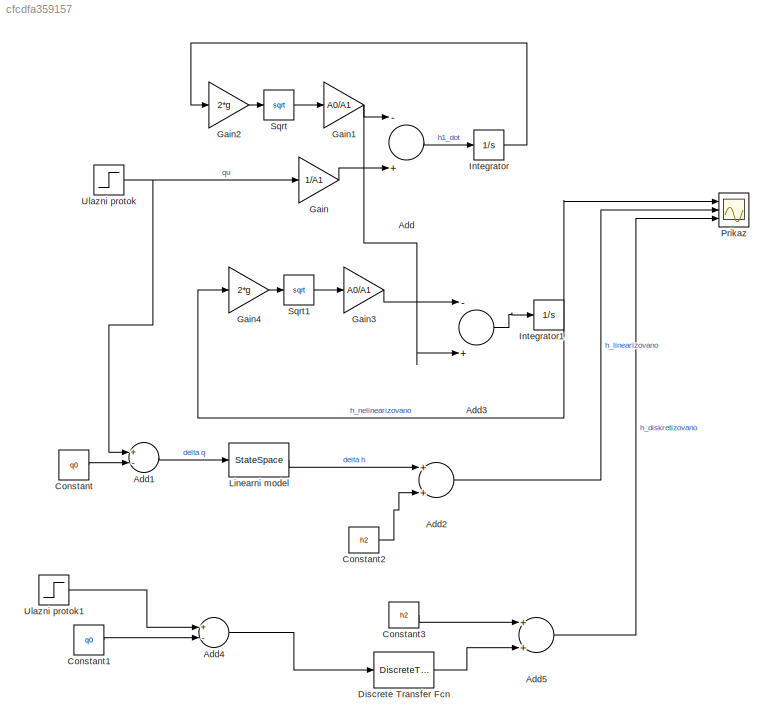
MODEL slx_cfcdfa359157
KIND model
CONFIG AbsTol = auto
CONFIG EnableMultiTasking = off
CONFIG FixedStep = auto
CONFIG MaxStep = auto
CONFIG MinStep = auto
CONFIG RelTol = 1e-3
CONFIG SampleTimeConstraint = Unconstrained
CONFIG Solver = VariableStepAuto
CONFIG SolverName = VariableStepAuto
CONFIG StartTime = 0.0
CONFIG StopTime = 6500
BLOCK [Sum] Add
  InputSameDT = off
  Inputs = -+
  OutDataTypeStr = Inherit: Inherit via internal rule
  Ports = [2, 1]
  SaturateOnIntegerOverflow = off
BLOCK [Sum] Add1
  InputSameDT = off
  Inputs = +-
  OutDataTypeStr = Inherit: Inherit via internal rule
  Ports = [2, 1]
  SaturateOnIntegerOverflow = off
BLOCK [Sum] Add2
  InputSameDT = off
  OutDataTypeStr = Inherit: Inherit via internal rule
  Ports = [2, 1]
  SaturateOnIntegerOverflow = off
BLOCK [Sum] Add3
  InputSameDT = off
  Inputs = -+
  OutDataTypeStr = Inherit: Inherit via internal rule
  Ports = [2, 1]
  SaturateOnIntegerOverflow = off
BLOCK [Sum] Add4
  InputSameDT = off
  Inputs = +-
  OutDataTypeStr = Inherit: Inherit via internal rule
  Ports = [2, 1]
  SaturateOnIntegerOverflow = off
BLOCK [Sum] Add5
  InputSameDT = off
  OutDataTypeStr = Inherit: Inherit via internal rule
  Ports = [2, 1]
  SaturateOnIntegerOverflow = off
BLOCK [Constant] Constant
  Value = q0
BLOCK [Constant] Constant1
  SampleTime = T
  Value = q0
BLOCK [Constant] Constant2
  Value = h2
BLOCK [Constant] Constant3
  SampleTime = T
  Value = h2
BLOCK [DiscreteTransferFcn] Discrete Transfer Fcn
  Denominator = [a, -2*a*exp(-a*T), a*exp(-2*a*T)]
  InputPortMap = u0
  Numerator = [b-b*a*T*exp(-a*T)-b*exp(-a*T), b*exp(-2*a*T)-b*exp(-a*T)+b*a*T*exp(-a*T)]
  Ports = [1, 1]
BLOCK [Gain] Gain
  Gain = 1/A1
  OutDataTypeStr = Inherit: Inherit via internal rule
  ParamDataTypeStr = Inherit: Inherit via internal rule
  SaturateOnIntegerOverflow = off
BLOCK [Gain] Gain1
  Gain = A0/A1
  OutDataTypeStr = Inherit: Inherit via internal rule
  ParamDataTypeStr = Inherit: Inherit via internal rule
  SaturateOnIntegerOverflow = off
BLOCK [Gain] Gain2
  Gain = 2*g
  OutDataTypeStr = Inherit: Inherit via internal rule
  ParamDataTypeStr = Inherit: Inherit via internal rule
  SaturateOnIntegerOverflow = off
BLOCK [Gain] Gain3
  Gain = A0/A1
  OutDataTypeStr = Inherit: Inherit via internal rule
  ParamDataTypeStr = Inherit: Inherit via internal rule
  SaturateOnIntegerOverflow = off
BLOCK [Gain] Gain4
  Gain = 2*g
  OutDataTypeStr = Inherit: Inherit via internal rule
  ParamDataTypeStr = Inherit: Inherit via internal rule
  SaturateOnIntegerOverflow = off
BLOCK [Integrator] Integrator
  Ports = [1, 1]
BLOCK [Integrator] Integrator1
  Ports = [1, 1]
BLOCK [StateSpace] Linearni model
  A = A
  B = B
  C = C
  D = D
  InitialCondition = 0
  Ports = [1, 1]
BLOCK [Scope] Prikaz
  Floating = off
  NumInputPorts = 3
  Ports = [3]
  ScopeSpecificationString = Simulink.scopes.TimeScopeBlockCfg('CurrentConfiguration', extmgr.ConfigurationSet(extmgr.Configuration('Core','General UI',true),extmgr.Configuration('Core','Source UI',true),extmgr.Configuration('Sources','WiredSimulink',true),extmgr.Configuration('Visuals','Time Domain',true,'SerializedDisplays',{struct('MinYLimReal','-0.17958','MaxYLimReal','0.92606','YLabelReal','','MinYLimMag','0.00000','MaxY...<+1511ch>
BLOCK [Sqrt] Sqrt
BLOCK [Sqrt] Sqrt1
BLOCK [Step] Ulazni protok
  After = qu_max
  SampleTime = 0
  Time = 100
BLOCK [Step] Ulazni protok1
  After = qu_max
  SampleTime = T
  Time = 100
LINE Add1:1 -> Linearni model:1
LINE Add2:1 -> Prikaz:2
LINE Add3:1 -> Integrator1:1
LINE Add4:1 -> Discrete Transfer Fcn:1
LINE Add5:1 -> Prikaz:3
LINE Add:1 -> Integrator:1
LINE Constant1:1 -> Add4:2
LINE Constant2:1 -> Add2:2
LINE Constant3:1 -> Add5:1
LINE Constant:1 -> Add1:2
LINE Discrete Transfer Fcn:1 -> Add5:2
NET Gain1:1 -> Add3:2, Add:1
LINE Gain2:1 -> Sqrt:1
LINE Gain3:1 -> Add3:1
LINE Gain4:1 -> Sqrt1:1
LINE Gain:1 -> Add:2
NET Integrator1:1 -> Gain4:1, Prikaz:1
LINE Integrator:1 -> Gain2:1
LINE Linearni model:1 -> Add2:1
LINE Sqrt1:1 -> Gain3:1
LINE Sqrt:1 -> Gain1:1
LINE Ulazni protok1:1 -> Add4:1
NET Ulazni protok:1 -> Add1:1, Gain:1
note: NET lines group one-source signal fan-out (src -> all destinations, sorted); 1:1 wires keep LINE
